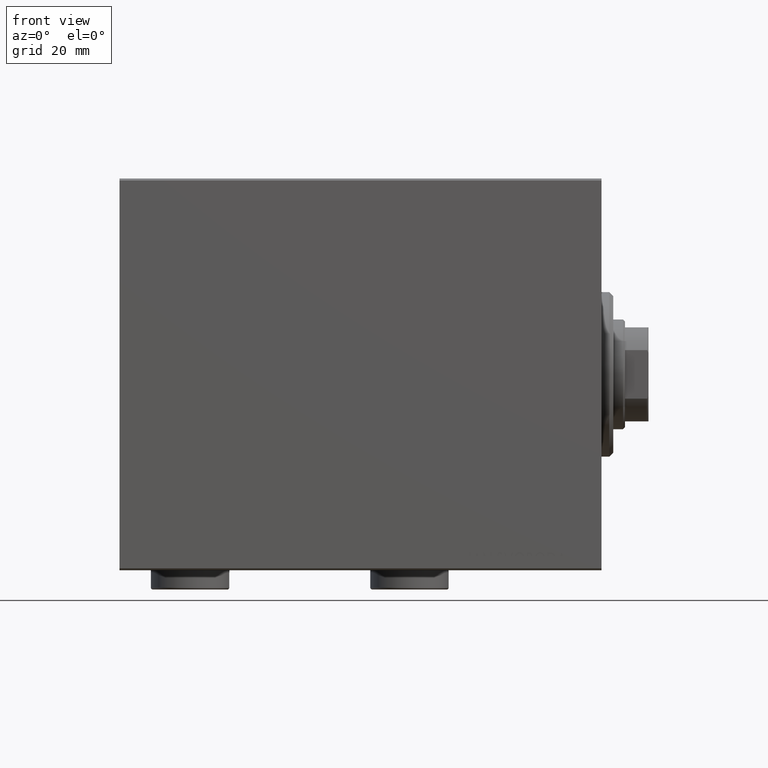
[diagram: clean part render]
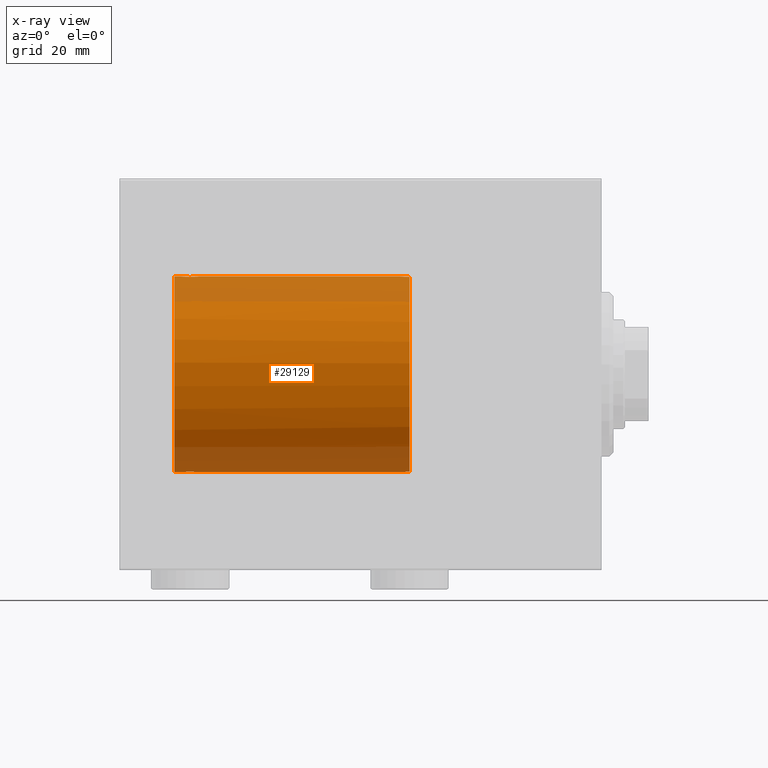
[diagram: x-ray — body ghosted, one internal face saturated and labeled with its STEP entity id]
A machine part, front view, then the same camera in x-ray: the body is ghosted and one INTERNAL B-rep face — a face not visible from any outside direction — is saturated and labeled: STEP entity #29129.
In plain terms, the highlighted cylindrical surface (partial cylindrical patch) has radius 25 mm, axis along (1, -0, 0).
Its self-contained STEP definition (entity closure, byte-faithful):
#125 = CARTESIAN_POINT ( 'NONE',  ( 50.98702174305361012, -1.526036272874677246, -24.95375646594394681 ) ) ;
#252 = CARTESIAN_POINT ( 'NONE',  ( 106.8818595414864348, -1.653834020452955134, 24.94550385189584674 ) ) ;
#456 = DIRECTION ( 'NONE',  ( -1.000000000000000000, -0.000000000000000000, -0.000000000000000000 ) ) ;
#488 = CARTESIAN_POINT ( 'NONE',  ( 104.6705231988572962, -2.483544361357290509, 24.87635491893501083 ) ) ;
#491 = ORIENTED_EDGE ( 'NONE', *, *, #30513, .T. ) ;
#727 = CARTESIAN_POINT ( 'NONE',  ( 102.4999999999999716, -0.1631750940176211473, 25.00000000000000711 ) ) ;
#957 = CARTESIAN_POINT ( 'NONE',  ( 103.4746381775692043, -1.987446652080280707, 24.92104239223420592 ) ) ;
#1552 = CARTESIAN_POINT ( 'NONE',  ( 51.16859437476860251, -1.254655768619018508, 24.96887084276583835 ) ) ;
#1859 = CIRCLE ( 'NONE', #27834, 25.00000000000000000 ) ;
#2003 = CARTESIAN_POINT ( 'NONE',  ( 51.43355748388673021, -0.6585516374675790541, 24.99313407876476845 ) ) ;
#2239 = CARTESIAN_POINT ( 'NONE',  ( 51.49999999999998579, -0.3303467437460066436, 24.99999999999999289 ) ) ;
#2853 = EDGE_CURVE ( 'NONE', #27728, #3473, #7493, .T. ) ;
#2935 = CARTESIAN_POINT ( 'NONE',  ( 103.1181404585135795, -1.653834020452944253, -24.94550385189586095 ) ) ;
#3294 = EDGE_CURVE ( 'NONE', #12537, #26512, #1859, .T. ) ;
#3473 = VERTEX_POINT ( 'NONE', #7789 ) ;
#3671 = ORIENTED_EDGE ( 'NONE', *, *, #2853, .T. ) ;
#3854 = CARTESIAN_POINT ( 'NONE',  ( 49.32776091233718319, -2.483776351160944529, -24.87633163959054983 ) ) ;
#3984 = CARTESIAN_POINT ( 'NONE',  ( 106.9853803371709375, -1.528152964861319463, 24.95362559291378446 ) ) ;
#4215 = CARTESIAN_POINT ( 'NONE',  ( 104.3509560983090410, -2.419770561643928897, 24.88263927071751525 ) ) ;
#4335 = DIRECTION ( 'NONE',  ( -1.000000000000000000, -0.000000000000000000, -0.000000000000000000 ) ) ;
#4337 = DIRECTION ( 'NONE',  ( -1.000000000000000000, -0.000000000000000000, -0.000000000000000000 ) ) ;
#4573 = CARTESIAN_POINT ( 'NONE',  ( 109.0000000000000000, 0.000000000000000000, 25.00000000000000000 ) ) ;
#4793 = B_SPLINE_CURVE_WITH_KNOTS ( 'NONE', 3,
 ( #29959, #26449, #12961, #30417, #27143, #40620, #12732, #41310, #30188, #9463, #23636, #26916, #19687, #37815, #20146, #44334, #12499, #26685, #33888, #34343, #27361, #41531, #35233, #38720, #13853, #2935, #20369, #24775, #24550, #9913, #41973, #35010 ),
 .UNSPECIFIED., .F., .F.,
 ( 4, 2, 2, 2, 2, 2, 2, 2, 2, 2, 2, 2, 2, 2, 2, 4 ),
 ( 0.007821024441662324106, 0.008309723826317930509, 0.008798423210973536912, 0.009287122595629143315, 0.009775821980284749718, 0.01026452136494035786, 0.01075322074959596426, 0.01124192013425157066, 0.01173061951890717707, 0.01221931890356278347, 0.01270801828821839161, 0.01319671767287399627, 0.01368541705752960441, 0.01417411644218520908, 0.01466281582684081722, 0.01564021459615204737 ),
 .UNSPECIFIED. ) ;
#4915 = CARTESIAN_POINT ( 'NONE',  ( 102.5798509077906715, -0.6480119923854282815, 24.99212088949390420 ) ) ;
#5273 = CARTESIAN_POINT ( 'NONE',  ( 50.65198134576846201, -1.883478992777950944, 24.92921645066837399 ) ) ;
#5281 = CARTESIAN_POINT ( 'NONE',  ( 48.99999999999999289, 0.000000000000000000, 0.000000000000000000 ) ) ;
#5651 = EDGE_CURVE ( 'NONE', #34792, #12537, #45099, .T. ) ;
#6421 = CARTESIAN_POINT ( 'NONE',  ( 51.42007142650475515, -0.6483226838983270346, -24.99211332904765115 ) ) ;
#7080 = DIRECTION ( 'NONE',  ( -1.000000000000000000, -0.000000000000000000, -0.000000000000000000 ) ) ;
#7174 = VECTOR ( 'NONE', #4335, 1000.000000000000000 ) ;
#7333 = CARTESIAN_POINT ( 'NONE',  ( 50.10917147430357232, -2.246461690108201736, -24.89894345481346605 ) ) ;
#7470 = CARTESIAN_POINT ( 'NONE',  ( 102.6278403059138924, -0.8058335233485502958, 24.98746277938382931 ) ) ;
#7493 = LINE ( 'NONE', #35850, #18202 ) ;
#7496 = EDGE_CURVE ( 'NONE', #25470, #29648, #36419, .T. ) ;
#7673 = LINE ( 'NONE', #15345, #34022 ) ;
#7708 = CARTESIAN_POINT ( 'NONE',  ( 105.6456066614863261, -2.420689345803777037, 24.88254961038872892 ) ) ;
#7789 = CARTESIAN_POINT ( 'NONE',  ( 107.5000000000000000, 3.061616978466108082E-15, -25.00000000000000000 ) ) ;
#7936 = CARTESIAN_POINT ( 'NONE',  ( 106.2508402392405600, -2.170728182476741708, 24.90574631553725027 ) ) ;
#9218 = B_SPLINE_CURVE_WITH_KNOTS ( 'NONE', 3,
 ( #37341, #40833, #38649, #22930, #37571, #34091, #34324, #13787, #5273, #33412, #31478, #1552, #26425, #2003, #2239, #44087 ),
 .UNSPECIFIED., .F., .F.,
 ( 4, 2, 2, 2, 2, 2, 2, 4 ),
 ( 0.01173250783369828368, 0.01222097117900499547, 0.01270943452431170725, 0.01319789786961841904, 0.01368636121492513257, 0.01417482456023184435, 0.01466328790553855614, 0.01564021459615198145 ),
 .UNSPECIFIED. ) ;
#9371 = ORIENTED_EDGE ( 'NONE', *, *, #5651, .T. ) ;
#9463 = CARTESIAN_POINT ( 'NONE',  ( 106.6538333614933833, -1.881857718844721639, -24.92933960374833546 ) ) ;
#9549 = AXIS2_PLACEMENT_3D ( 'NONE', #20998, #35181, #17514 ) ;
#9913 = CARTESIAN_POINT ( 'NONE',  ( 102.5665064476025350, -0.6588655613945889611, -24.99312727339970763 ) ) ;
#10813 = CYLINDRICAL_SURFACE ( 'NONE', #28945, 25.00000000000000000 ) ;
#10830 = CARTESIAN_POINT ( 'NONE',  ( 51.37203761003154767, -0.8062086779018831084, -24.98745104517488613 ) ) ;
#10964 = CARTESIAN_POINT ( 'NONE',  ( 104.8329350482193689, -2.499872792855102333, 24.87469871246081254 ) ) ;
#11436 = CARTESIAN_POINT ( 'NONE',  ( 103.8896320349113722, -2.245863995402923141, 24.89899750494196340 ) ) ;
#11899 = CARTESIAN_POINT ( 'NONE',  ( 103.3461666385066167, -1.881857718844728522, 24.92933960374834612 ) ) ;
#12216 = VERTEX_POINT ( 'NONE', #16160 ) ;
#12257 = DIRECTION ( 'NONE',  ( 0.000000000000000000, 0.000000000000000000, 1.000000000000000000 ) ) ;
#12499 = CARTESIAN_POINT ( 'NONE',  ( 105.1670649517805742, -2.499872792855088566, -24.87469871246081965 ) ) ;
#12537 = VERTEX_POINT ( 'NONE', #18440 ) ;
#12732 = CARTESIAN_POINT ( 'NONE',  ( 107.1701129028092510, -1.252049606094345124, -24.96900299967627390 ) ) ;
#12961 = CARTESIAN_POINT ( 'NONE',  ( 107.4841784005765390, -0.3254210271412219524, -24.99840249400844172 ) ) ;
#13008 = CARTESIAN_POINT ( 'NONE',  ( 102.5000000000000000, -1.940242839436339586E-23, 25.00000000000000000 ) ) ;
#13409 = CARTESIAN_POINT ( 'NONE',  ( 51.48416326589131842, -0.3255777637343010844, -24.99840095034441134 ) ) ;
#13787 = CARTESIAN_POINT ( 'NONE',  ( 50.52344858756305968, -1.988904927987651616, 24.92092538195026918 ) ) ;
#13839 = FACE_OUTER_BOUND ( 'NONE', #20598, .T. ) ;
#13853 = CARTESIAN_POINT ( 'NONE',  ( 103.3487886644088860, -1.884161199660622232, -24.92916496727982434 ) ) ;
#14324 = CARTESIAN_POINT ( 'NONE',  ( 50.52448121535760350, -1.988128153583516244, -24.92098794577093201 ) ) ;
#14684 = CARTESIAN_POINT ( 'NONE',  ( 51.50000000000000711, 3.061616978460191625E-15, -25.00000000000000000 ) ) ;
#14923 = CARTESIAN_POINT ( 'NONE',  ( 102.5000000000000000, -1.940242839436339586E-23, 25.00000000000000000 ) ) ;
#15345 = CARTESIAN_POINT ( 'NONE',  ( 109.0000000000000000, 0.000000000000000000, 25.00000000000000000 ) ) ;
#15410 = EDGE_CURVE ( 'NONE', #3473, #36260, #4793, .T. ) ;
#15852 = EDGE_CURVE ( 'NONE', #27728, #12216, #34788, .T. ) ;
#16160 = CARTESIAN_POINT ( 'NONE',  ( 109.0000000000000000, 0.000000000000000000, 25.00000000000000000 ) ) ;
#16841 = EDGE_CURVE ( 'NONE', #36260, #34792, #31863, .T. ) ;
#17426 = CARTESIAN_POINT ( 'NONE',  ( 109.0000000000000000, 3.061616997868383043E-15, -25.00000000000000000 ) ) ;
#17514 = DIRECTION ( 'NONE',  ( 0.000000000000000000, 0.000000000000000000, 1.000000000000000000 ) ) ;
#18033 = CARTESIAN_POINT ( 'NONE',  ( 49.16525157688247560, -2.500000000000000000, -24.87468592766549591 ) ) ;
#18184 = DIRECTION ( 'NONE',  ( -1.000000000000000000, -0.000000000000000000, -0.000000000000000000 ) ) ;
#18202 = VECTOR ( 'NONE', #18184, 1000.000000000000000 ) ;
#18395 = CARTESIAN_POINT ( 'NONE',  ( 105.8043566091630225, -2.372734907014194761, 24.88722742718432812 ) ) ;
#18440 = CARTESIAN_POINT ( 'NONE',  ( 48.99999999999999289, -2.499999999999999112, -24.87468592766549946 ) ) ;
#18636 = CARTESIAN_POINT ( 'NONE',  ( 107.5000000000000284, -0.3305063766663782210, 25.00000000000000355 ) ) ;
#18861 = CARTESIAN_POINT ( 'NONE',  ( 104.1921165759419239, -2.371528299825769626, 24.88734287464370354 ) ) ;
#19687 = CARTESIAN_POINT ( 'NONE',  ( 106.1103679650886136, -2.245863995402910707, -24.89899750494197050 ) ) ;
#20146 = CARTESIAN_POINT ( 'NONE',  ( 105.6490439016909590, -2.419770561643915574, -24.88263927071751169 ) ) ;
#20369 = CARTESIAN_POINT ( 'NONE',  ( 103.0146196628290767, -1.528152964861313690, -24.95362559291379156 ) ) ;
#20595 = CARTESIAN_POINT ( 'NONE',  ( 51.50000000000000000, -0.1632539067686826773, -25.00000000000001066 ) ) ;
#20598 = EDGE_LOOP ( 'NONE', ( #20953, #3671, #45452, #22649, #9371, #42203, #25898, #35822, #491, #34707 ) ) ;
#20953 = ORIENTED_EDGE ( 'NONE', *, *, #15852, .F. ) ;
#20998 = CARTESIAN_POINT ( 'NONE',  ( 109.0000000000000000, 0.000000000000000000, 0.000000000000000000 ) ) ;
#21522 = CARTESIAN_POINT ( 'NONE',  ( 49.64751827305907028, -2.420184345106186186, -24.88259891050737238 ) ) ;
#21655 = CARTESIAN_POINT ( 'NONE',  ( 107.5000000000000000, 4.348838763822197640E-16, 25.00000000000000000 ) ) ;
#22114 = CARTESIAN_POINT ( 'NONE',  ( 107.2460637909407239, -1.109818057797421931, 24.97580694515542987 ) ) ;
#22354 = CARTESIAN_POINT ( 'NONE',  ( 107.1682764149395979, -1.255214705003186548, 24.96884293994578030 ) ) ;
#22649 = ORIENTED_EDGE ( 'NONE', *, *, #16841, .T. ) ;
#22742 = CARTESIAN_POINT ( 'NONE',  ( 51.50000000000000711, 1.027162637006531020E-28, 25.00000000000000000 ) ) ;
#22930 = CARTESIAN_POINT ( 'NONE',  ( 49.64713194170840183, -2.420276907015970647, 24.88258984763800896 ) ) ;
#23636 = CARTESIAN_POINT ( 'NONE',  ( 106.5253618224307957, -1.987446652080266940, -24.92104239223420592 ) ) ;
#24154 = B_SPLINE_CURVE_WITH_KNOTS ( 'NONE', 3,
 ( #14923, #727, #26083, #4915, #7470, #25610, #29115, #42801, #39785, #11899, #957, #32139, #11436, #18861, #4215, #488, #10964, #43040, #43270, #7708, #18395, #36757, #7936, #29342, #40017, #252, #3984, #22354, #22114, #39316, #18636, #21655 ),
 .UNSPECIFIED., .F., .F.,
 ( 4, 2, 2, 2, 2, 2, 2, 2, 2, 2, 2, 2, 2, 2, 2, 4 ),
 ( 0.007821024441662325841, 0.008309723826317939183, 0.008798423210973550790, 0.009287122595629162397, 0.009775821980284775739, 0.01026452136494038735, 0.01075322074959600069, 0.01124192013425161230, 0.01173061951890722390, 0.01221931890356283724, 0.01270801828821845059, 0.01319671767287406219, 0.01368541705752967380, 0.01417411644218528714, 0.01466281582684090048, 0.01564021459615210982 ),
 .UNSPECIFIED. ) ;
#24550 = CARTESIAN_POINT ( 'NONE',  ( 102.7539362090593187, -1.109818057797418378, -24.97580694515541921 ) ) ;
#24641 = CARTESIAN_POINT ( 'NONE',  ( 109.0000000000000000, 3.061616997868383043E-15, -25.00000000000000000 ) ) ;
#24775 = CARTESIAN_POINT ( 'NONE',  ( 102.8317235850604021, -1.255214705003182996, -24.96884293994578030 ) ) ;
#24781 = CARTESIAN_POINT ( 'NONE',  ( 51.24736354914203673, -1.107200042321252242, -24.97592421180084798 ) ) ;
#24989 = CARTESIAN_POINT ( 'NONE',  ( 109.0000000000000000, 0.000000000000000000, 0.000000000000000000 ) ) ;
#25010 = CARTESIAN_POINT ( 'NONE',  ( 51.16979534655761341, -1.252609383468746618, -24.96897511313218487 ) ) ;
#25400 = EDGE_CURVE ( 'NONE', #12216, #30576, #7673, .T. ) ;
#25470 = VERTEX_POINT ( 'NONE', #13008 ) ;
#25610 = CARTESIAN_POINT ( 'NONE',  ( 102.7523974898044656, -1.106703319666890728, 24.97594585958023217 ) ) ;
#25898 = ORIENTED_EDGE ( 'NONE', *, *, #41613, .T. ) ;
#26083 = CARTESIAN_POINT ( 'NONE',  ( 102.5158215994233899, -0.3254210271412255606, 24.99840249400844527 ) ) ;
#26425 = CARTESIAN_POINT ( 'NONE',  ( 51.24630334641553731, -1.109321570839806981, 24.97582863464294789 ) ) ;
#26449 = CARTESIAN_POINT ( 'NONE',  ( 107.5000000000000142, -0.1631750940176187603, -25.00000000000000711 ) ) ;
#26512 = VERTEX_POINT ( 'NONE', #35066 ) ;
#26685 = CARTESIAN_POINT ( 'NONE',  ( 104.8367641036145415, -2.500125740978201616, -24.87467329022545570 ) ) ;
#26916 = CARTESIAN_POINT ( 'NONE',  ( 106.2538319542450154, -2.169003991399875986, -24.90589728951138682 ) ) ;
#27143 = CARTESIAN_POINT ( 'NONE',  ( 107.3721596940860650, -0.8058335233485485194, -24.98746277938382576 ) ) ;
#27361 = CARTESIAN_POINT ( 'NONE',  ( 104.1956433908369490, -2.372734907014180550, -24.88722742718433523 ) ) ;
#27728 = VERTEX_POINT ( 'NONE', #17426 ) ;
#27834 = AXIS2_PLACEMENT_3D ( 'NONE', #5281, #36890, #12257 ) ;
#28260 = DIRECTION ( 'NONE',  ( 0.000000000000000000, 0.000000000000000000, 1.000000000000000000 ) ) ;
#28281 = CARTESIAN_POINT ( 'NONE',  ( 51.50000000000000711, 3.061616978460191625E-15, -25.00000000000000000 ) ) ;
#28945 = AXIS2_PLACEMENT_3D ( 'NONE', #24989, #7080, #28260 ) ;
#29115 = CARTESIAN_POINT ( 'NONE',  ( 102.8298870971907348, -1.252049606094355783, 24.96900299967627035 ) ) ;
#29129 = ADVANCED_FACE ( 'NONE', ( #13839 ), #10813, .F. ) ;
#29342 = CARTESIAN_POINT ( 'NONE',  ( 106.5225677434019360, -1.989585286700267241, 24.92087098724766392 ) ) ;
#29648 = VERTEX_POINT ( 'NONE', #22742 ) ;
#29959 = CARTESIAN_POINT ( 'NONE',  ( 107.5000000000000000, 3.061616978466108082E-15, -25.00000000000000000 ) ) ;
#30188 = CARTESIAN_POINT ( 'NONE',  ( 106.8841238278646983, -1.651251241585105944, -24.94567559498348785 ) ) ;
#30417 = CARTESIAN_POINT ( 'NONE',  ( 107.4201490922092574, -0.6480119923854237296, -24.99212088949390420 ) ) ;
#30513 = EDGE_CURVE ( 'NONE', #25470, #30576, #24154, .T. ) ;
#30576 = VERTEX_POINT ( 'NONE', #33522 ) ;
#31478 = CARTESIAN_POINT ( 'NONE',  ( 50.98585726474311741, -1.527525313726071587, 24.95366383271957389 ) ) ;
#31863 = LINE ( 'NONE', #24641, #37777 ) ;
#32139 = CARTESIAN_POINT ( 'NONE',  ( 103.7461680457549704, -2.169003991399890197, 24.90589728951138682 ) ) ;
#32238 = CARTESIAN_POINT ( 'NONE',  ( 48.99999999999999289, -2.499999999999999112, -24.87468592766549946 ) ) ;
#33412 = CARTESIAN_POINT ( 'NONE',  ( 50.88242608748713991, -1.653181027035657946, 24.94554706660810339 ) ) ;
#33522 = CARTESIAN_POINT ( 'NONE',  ( 107.5000000000000000, 4.348838763822197640E-16, 25.00000000000000000 ) ) ;
#33888 = CARTESIAN_POINT ( 'NONE',  ( 104.6740342996053670, -2.484007091859770089, -24.87630842367763151 ) ) ;
#34022 = VECTOR ( 'NONE', #456, 1000.000000000000000 ) ;
#34091 = CARTESIAN_POINT ( 'NONE',  ( 50.10843587962992274, -2.246820166682036657, 24.89891093247707232 ) ) ;
#34324 = CARTESIAN_POINT ( 'NONE',  ( 50.25192776697308261, -2.170095684020228788, 24.90580152148297088 ) ) ;
#34343 = CARTESIAN_POINT ( 'NONE',  ( 104.3543933385136739, -2.420689345803764159, -24.88254961038873958 ) ) ;
#34707 = ORIENTED_EDGE ( 'NONE', *, *, #25400, .F. ) ;
#34788 = CIRCLE ( 'NONE', #9549, 25.00000000000000000 ) ;
#34792 = VERTEX_POINT ( 'NONE', #14684 ) ;
#35010 = CARTESIAN_POINT ( 'NONE',  ( 102.5000000000000000, -5.212883661637730998E-15, -25.00000000000000000 ) ) ;
#35066 = CARTESIAN_POINT ( 'NONE',  ( 48.99999999999999289, -2.500000000000020872, 24.87468592766549946 ) ) ;
#35181 = DIRECTION ( 'NONE',  ( -1.000000000000000000, 0.000000000000000000, 0.000000000000000000 ) ) ;
#35233 = CARTESIAN_POINT ( 'NONE',  ( 103.7491597607594400, -2.170728182476727497, -24.90574631553724672 ) ) ;
#35466 = CARTESIAN_POINT ( 'NONE',  ( 50.65306428591296140, -1.882540433157142035, -24.92928812645855530 ) ) ;
#35822 = ORIENTED_EDGE ( 'NONE', *, *, #7496, .F. ) ;
#35850 = CARTESIAN_POINT ( 'NONE',  ( 109.0000000000000000, 3.061616997868383043E-15, -25.00000000000000000 ) ) ;
#36260 = VERTEX_POINT ( 'NONE', #39908 ) ;
#36419 = LINE ( 'NONE', #4573, #7174 ) ;
#36757 = CARTESIAN_POINT ( 'NONE',  ( 106.1072384583840886, -2.247417070759915703, 24.89885693081946627 ) ) ;
#36890 = DIRECTION ( 'NONE',  ( -1.000000000000000000, 0.000000000000000000, 0.000000000000000000 ) ) ;
#37341 = CARTESIAN_POINT ( 'NONE',  ( 48.99999999999999289, -2.500000000000020872, 24.87468592766549946 ) ) ;
#37571 = CARTESIAN_POINT ( 'NONE',  ( 49.80579201653556964, -2.372241595358196342, 24.88727458558063432 ) ) ;
#37777 = VECTOR ( 'NONE', #4337, 1000.000000000000000 ) ;
#37815 = CARTESIAN_POINT ( 'NONE',  ( 105.8078834240580761, -2.371528299825757191, -24.88734287464371064 ) ) ;
#38649 = CARTESIAN_POINT ( 'NONE',  ( 49.32768231724819685, -2.483776228966070310, 24.87633159203414124 ) ) ;
#38720 = CARTESIAN_POINT ( 'NONE',  ( 103.4774322565980924, -1.989585286700254141, -24.92087098724766747 ) ) ;
#38951 = CARTESIAN_POINT ( 'NONE',  ( 50.88355788756845044, -1.651904870145708637, -24.94563238874589217 ) ) ;
#39180 = CARTESIAN_POINT ( 'NONE',  ( 50.25274507586783557, -2.169637367381581416, -24.90584203439813393 ) ) ;
#39316 = CARTESIAN_POINT ( 'NONE',  ( 107.4334935523974934, -0.6588655613945880729, 24.99312727339969697 ) ) ;
#39785 = CARTESIAN_POINT ( 'NONE',  ( 103.1158761721353017, -1.651251241585111273, 24.94567559498348785 ) ) ;
#39908 = CARTESIAN_POINT ( 'NONE',  ( 102.5000000000000000, -5.212883661637730998E-15, -25.00000000000000000 ) ) ;
#40017 = CARTESIAN_POINT ( 'NONE',  ( 106.6512113355911424, -1.884161199660635777, 24.92916496727982434 ) ) ;
#40620 = CARTESIAN_POINT ( 'NONE',  ( 107.2476025101954917, -1.106703319666886953, -24.97594585958023927 ) ) ;
#40833 = CARTESIAN_POINT ( 'NONE',  ( 49.16509202258268374, -2.500000000000022649, 24.87468592766549946 ) ) ;
#41310 = CARTESIAN_POINT ( 'NONE',  ( 106.9874981583439961, -1.525407911884373080, -24.95379469572362652 ) ) ;
#41531 = CARTESIAN_POINT ( 'NONE',  ( 103.8927615416159114, -2.247417070759903712, -24.89885693081946272 ) ) ;
#41613 = EDGE_CURVE ( 'NONE', #26512, #29648, #9218, .T. ) ;
#41756 = CARTESIAN_POINT ( 'NONE',  ( 49.80644974582759943, -2.372022405456399863, -24.88729565459323823 ) ) ;
#41973 = CARTESIAN_POINT ( 'NONE',  ( 102.5000000000000284, -0.3305063766663799973, -25.00000000000001421 ) ) ;
#42203 = ORIENTED_EDGE ( 'NONE', *, *, #3294, .T. ) ;
#42801 = CARTESIAN_POINT ( 'NONE',  ( 103.0125018416560181, -1.525407911884385515, 24.95379469572361941 ) ) ;
#43040 = CARTESIAN_POINT ( 'NONE',  ( 105.1632358963854301, -2.500125740978215383, 24.87467329022545215 ) ) ;
#43270 = CARTESIAN_POINT ( 'NONE',  ( 105.3259657003946046, -2.484007091859783856, 24.87630842367763506 ) ) ;
#44087 = CARTESIAN_POINT ( 'NONE',  ( 51.50000000000000711, 1.027162637006531020E-28, 25.00000000000000000 ) ) ;
#44334 = CARTESIAN_POINT ( 'NONE',  ( 105.3294768011426754, -2.483544361357276742, -24.87635491893501793 ) ) ;
#45099 = B_SPLINE_CURVE_WITH_KNOTS ( 'NONE', 3,
 ( #28281, #20595, #13409, #6421, #10830, #24781, #25010, #125, #38951, #35466, #14324, #39180, #7333, #41756, #21522, #3854, #18033, #32238 ),
 .UNSPECIFIED., .F., .F.,
 ( 4, 2, 2, 2, 2, 2, 2, 2, 4 ),
 ( 0.007821024441662318902, 0.008309959865666821655, 0.008798895289671324407, 0.009287830713675827160, 0.009776766137680331648, 0.01026570156168483440, 0.01075463698568933715, 0.01124357240969384164, 0.01173250783369834439 ),
 .UNSPECIFIED. ) ;
#45452 = ORIENTED_EDGE ( 'NONE', *, *, #15410, .T. ) ;